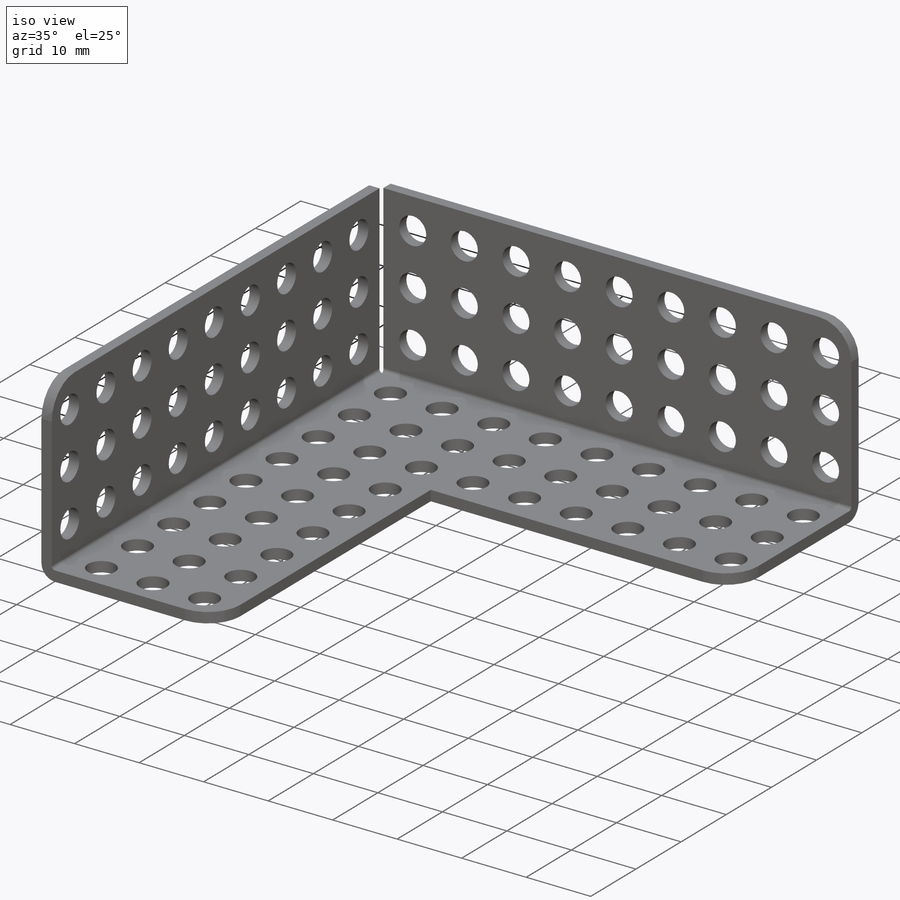
[diagram: iso view]
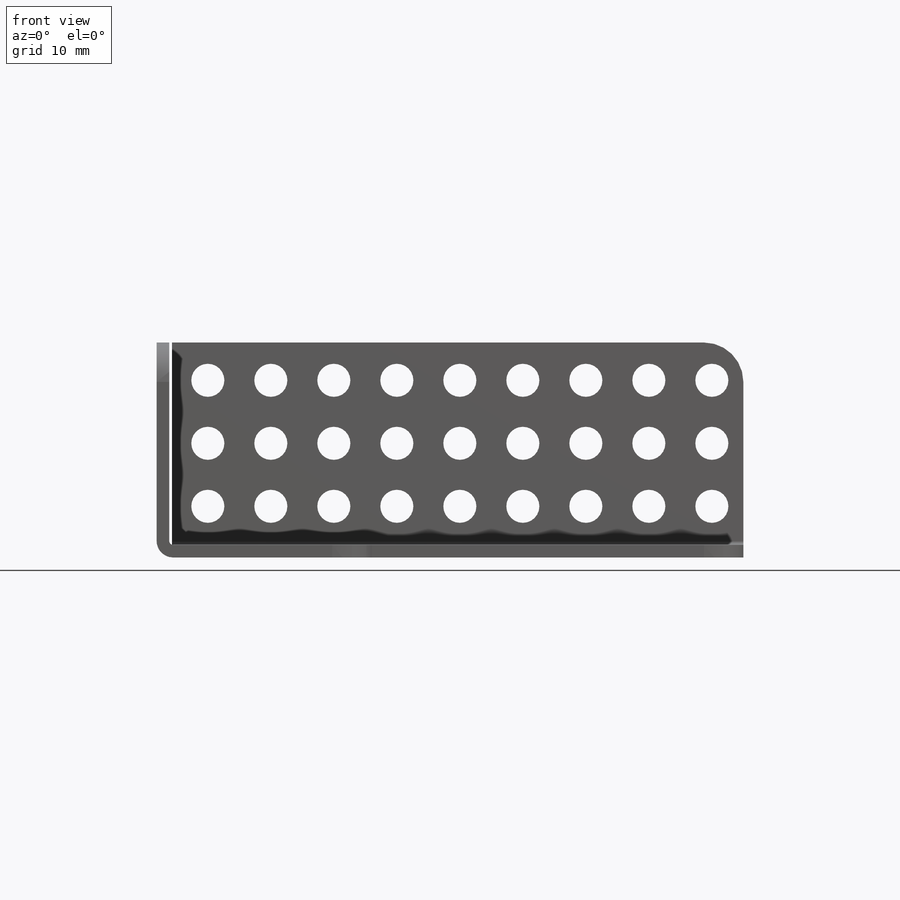
[diagram: front view]
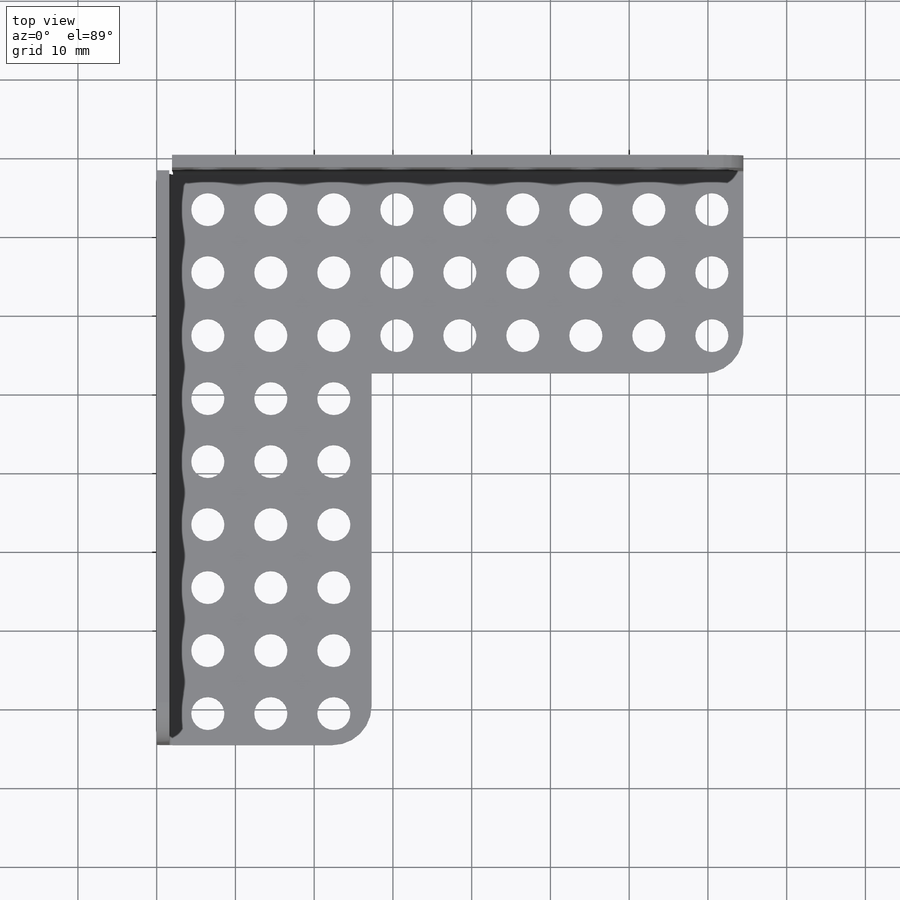
[diagram: top view]
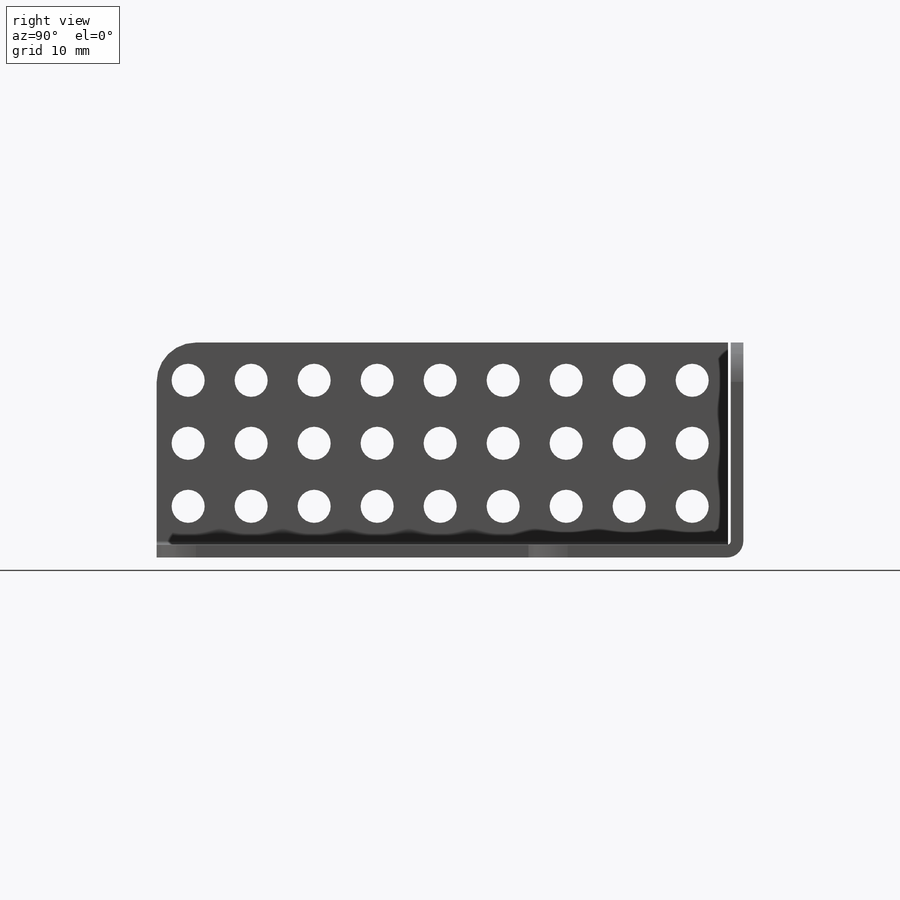
[diagram: right view]
SOLIDWORKS PART (.sldprt)
format: sldprt  version: not decoded by parser v0  size: 606,208 bytes
history: native  units: mm
features: sketch x24, sheet_metal_op x10, cut_extrude x3, pattern_linear x3, material x1, fillet x1 + 8 further entries (+12 scaffold rows collapsed; 8 parser-record rows omitted)
feature tree (70):
  scaffold x12  (default folders/planes/origin — collapsed)
  material  "1060 Alloy"
  sketch  "Sketch1"  dims[c1.D1=74.5mm c1.D2=74.5mm c1.D3=27.3mm c1.D4=27.3mm c2.D1=1.0mm c2.D2=0.5 c2.D3=0.0mm c2.D6=500.0mm]
  sheet_metal_op  "Base-Flange1"
  sketch  "Sketch10"  dims[D1=33.0mm D2=9.0mm D3=27.3mm]
  sketch  "Sketch11"  dims[c1.D1=33.0mm c1.D2=9.0mm c1.D3=27.3mm c2.D1=0.5mm c2.D4=90.0deg c2.D5=1.0 c2.D8=0.5mm c2.D9=0.5mm]
  sheet_metal_op  "EdgeBend2"
  fillet  "Fillet1"  Radius=5mm
  sketch  "Sketch12"  dims[D3=4.2mm D1=6.5mm D2=6.5mm]
  cut_extrude  "Cut-Extrude1"  [1 undecoded]
  sketch  "Sketch13"  dims[c1.D1=~3.937299mm c1.D3=4.2mm c2.D1=6.5mm c2.D2=6.5mm]
  cut_extrude  "Cut-Extrude2"  [1 undecoded]
  sketch  "Sketch14"  dims[c1.D2=~2.050468mm c1.D3=4.2mm c1.D1=6.5mm c2.D2=6.5mm]
  cut_extrude  "Cut-Extrude3"  [1 undecoded]
  pattern_linear  "LPattern1"  Count1=9 Count2=3 Spacing1=8mm Spacing2=8mm
  pattern_linear  "LPattern2"  Count1=9 Count2=9 Spacing1=8mm Spacing2=8mm
  pattern_linear  "LPattern3"  Count1=3 Count2=9 Spacing1=8mm Spacing2=8mm
  sketch  "Bend-Lines1"
  sketch  "Bounding-Box1"
  sheet_metal_op  "Sheet-Metal(1)"
  "Flat-Pattern(1)"
  sketch  "Bend-Lines2"
  sketch  "Bounding-Box2"
  parser-record x8  (decoder bookkeeping rows leaked as tree rows — omitted from the tree; the rows remain in map.json)
  sheet_metal_op  "Sheet-Metal(2)"
  "Flat-Pattern(1)"
  sketch  "Bend-Lines2"
  sketch  "Bounding-Box2"
  sheet_metal_op  "Sheet-Metal(3)"
  "Flat-Pattern(1)"
  sketch  "Bend-Lines2"
  sketch  "Bounding-Box2"
  sheet_metal_op  "Sheet-Metal(4)"
  "Flat-Pattern(1)"
  sketch  "Bend-Lines2"
  sketch  "Bounding-Box2"
  sheet_metal_op  "Sheet-Metal(5)"
  "Flat-Pattern(1)"
  sketch  "Bend-Lines2"
  sketch  "Bounding-Box2"
  sheet_metal_op  "Sheet-Metal(6)"
  "Flat-Pattern(1)"
  sketch  "Bend-Lines2"
  sketch  "Bounding-Box2"
  sheet_metal_op  "Sheet-Metal(7)"
  "Flat-Pattern(1)"
  sketch  "Bend-Lines2"
  sketch  "Bounding-Box2"
  sheet_metal_op  "Sheet-Metal(8)"
  "Flat-Pattern(1)"
  sketch  "Bend-Lines2"
  sketch  "Bounding-Box2"
decode coverage: 10 of 41 modeling features carry decoded parameters; 8 rows unclassified (native names shown)
note: ~ marks probable driven/reference dimensions
note: 3 parameter values undecoded
summary: no parameter record found for 3 features
note: suppression state not decoded; provenance and decode notes live in map.json
